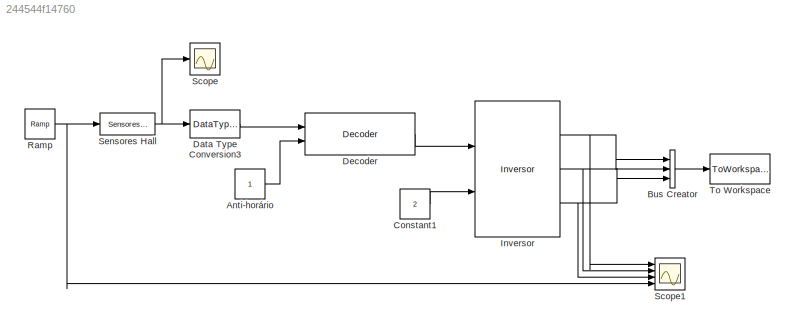
MODEL slx_244544f14760
KIND model
BLOCK [Constant] Anti-horário
BLOCK [BusCreator] Bus Creator
  DisplayOption = bar
  Inputs = 3
  Ports = [3, 1]
BLOCK [Constant] Constant1
  Value = 2
BLOCK [DataTypeConversion] Data Type Conversion3
BLOCK [Reference] Decoder  REF=BLDC/BLDC (block commutation)/Decoder
  Ports = [2, 1]
  SourceBlock = BLDC/BLDC (block commutation)/Decoder
  SourceType = SubSystem
BLOCK [Reference] Inversor  REF=BLDC/BLDC (block commutation)/Inversor
  Ports = [2, 3]
  SourceBlock = BLDC/BLDC (block commutation)/Inversor
  SourceType = SubSystem
BLOCK [Reference] Ramp  REF=simulink/Sources/Ramp
  Ports = [0, 1]
  SourceBlock = simulink/Sources/Ramp
  SourceType = Ramp
  VectorParams1D = on
  X0 = 0
  slope = 2*pi
  start = 0
BLOCK [Scope] Scope
  DataFormat = StructureWithTime
  Floating = off
  NumInputPorts = 1
  Ports = [1]
  SampleTime = 0
  ShowLegends = off
  ZoomMode = xonly
BLOCK [Scope] Scope1
  DataFormat = StructureWithTime
  Floating = off
  LimitDataPoints = off
  NumInputPorts = 4
  Ports = [4]
  SampleTime = 0
  SaveName = ScopeData1
  ShowLegends = off
  YMax = 2~2~2~5
  YMin = -2~-2~-2~-5
  ZoomMode = yonly
BLOCK [Reference] Sensores Hall  REF=BLDC/BLDC (block commutation)/Sensores Hall
  Ports = [1, 1]
  SourceBlock = BLDC/BLDC (block commutation)/Sensores Hall
  SourceType = SubSystem
BLOCK [ToWorkspace] To Workspace
  MaxDataPoints = inf
  Ports = [1]
  SampleTime = -1
  VariableName = gates
LINE Anti-horário:1 -> Decoder:2
LINE Bus Creator:1 -> To Workspace:1
LINE Constant1:1 -> Inversor:2
LINE Data Type Conversion3:1 -> Decoder:1
LINE Decoder:1 -> Inversor:1
NET Inversor:1 -> Bus Creator:1, Scope1:1
NET Inversor:2 -> Bus Creator:2, Scope1:2
NET Inversor:3 -> Bus Creator:3, Scope1:3
NET Ramp:1 -> Scope1:4, Sensores Hall:1
NET Sensores Hall:1 -> Data Type Conversion3:1, Scope:1
note: NET lines group one-source signal fan-out (src -> all destinations, sorted); 1:1 wires keep LINE
